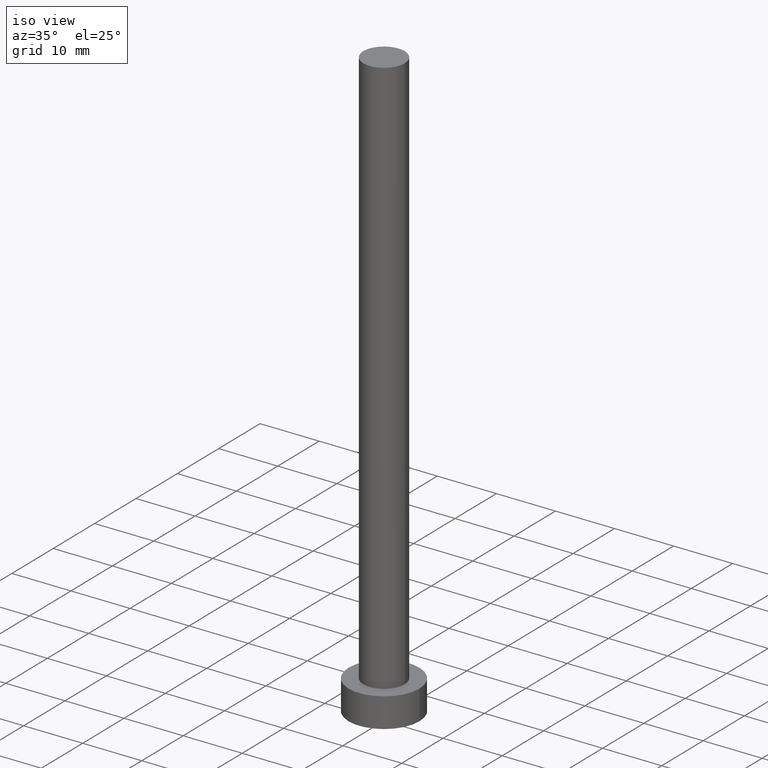
[diagram: clean part render]
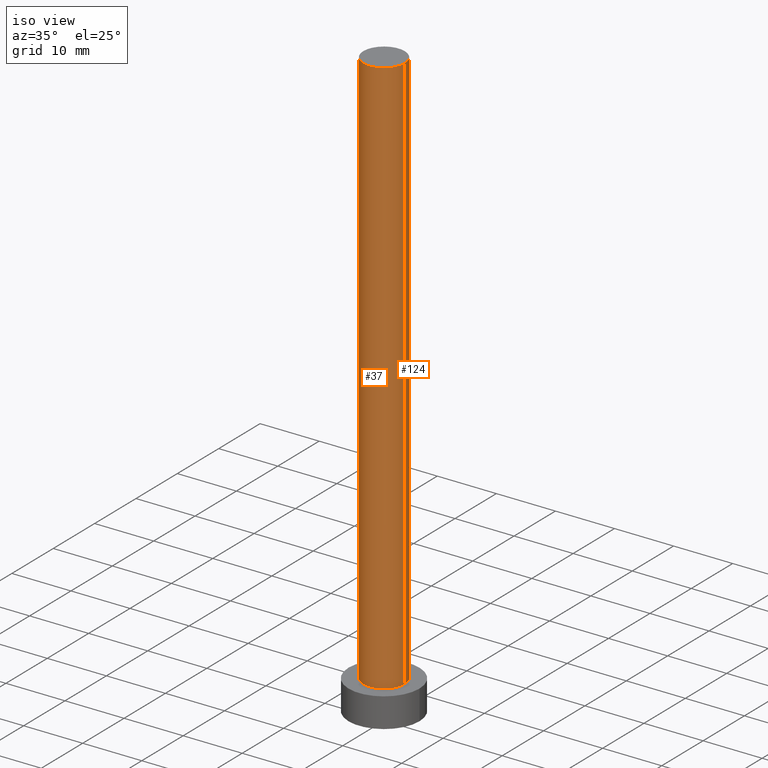
[diagram: same view with one multi-face feature highlighted, each face labeled with its STEP entity id]
A machine part, iso view. The highlighted faces form ONE feature: a constant-radius fillet chain: 2 tangent blend faces with common blend radius 3.5 mm. The faces share edges in the B-rep.
Their STEP definitions:
[1] entity #37 (Cylinder):
#11 = AXIS2_PLACEMENT_3D ( 'NONE', #196, #219, #64 ) ;
#12 = VERTEX_POINT ( 'NONE', #132 ) ;
#13 = DIRECTION ( 'NONE',  ( -0.000000000000000000, -0.000000000000000000, -1.000000000000000000 ) ) ;
#16 = FACE_OUTER_BOUND ( 'NONE', #223, .T. ) ;
#17 = EDGE_CURVE ( 'NONE', #26, #12, #121, .T. ) ;
#26 = VERTEX_POINT ( 'NONE', #128 ) ;
#29 = ORIENTED_EDGE ( 'NONE', *, *, #209, .T. ) ;
#37 = ADVANCED_FACE ( 'NONE', ( #16 ), #252, .T. ) ;
#41 = AXIS2_PLACEMENT_3D ( 'NONE', #111, #190, #188 ) ;
#57 = DIRECTION ( 'NONE',  ( 0.000000000000000000, 0.000000000000000000, 1.000000000000000000 ) ) ;
#64 = DIRECTION ( 'NONE',  ( 1.000000000000000000, 0.000000000000000000, 0.000000000000000000 ) ) ;
#73 = EDGE_CURVE ( 'NONE', #123, #12, #148, .T. ) ;
#92 = DIRECTION ( 'NONE',  ( 1.000000000000000000, 0.000000000000000000, 0.000000000000000000 ) ) ;
#96 = CARTESIAN_POINT ( 'NONE',  ( -3.500000000000000000, 0.000000000000000000, 100.0000000000000000 ) ) ;
#111 = CARTESIAN_POINT ( 'NONE',  ( 0.000000000000000000, 0.000000000000000000, 100.0000000000000000 ) ) ;
#120 = VERTEX_POINT ( 'NONE', #156 ) ;
#121 = CIRCLE ( 'NONE', #152, 3.500000000000000000 ) ;
#123 = VERTEX_POINT ( 'NONE', #151 ) ;
#128 = CARTESIAN_POINT ( 'NONE',  ( -3.500000000000000000, 0.000000000000000000, 5.000000000000000000 ) ) ;
#130 = VECTOR ( 'NONE', #191, 1000.000000000000000 ) ;
#132 = CARTESIAN_POINT ( 'NONE',  ( 3.500000000000000000, 4.286263797015736595E-16, 5.000000000000000000 ) ) ;
#140 = ORIENTED_EDGE ( 'NONE', *, *, #73, .F. ) ;
#148 = LINE ( 'NONE', #235, #192 ) ;
#151 = CARTESIAN_POINT ( 'NONE',  ( 3.500000000000000000, 4.286263797015736595E-16, 100.0000000000000000 ) ) ;
#152 = AXIS2_PLACEMENT_3D ( 'NONE', #208, #57, #92 ) ;
#153 = LINE ( 'NONE', #96, #130 ) ;
#156 = CARTESIAN_POINT ( 'NONE',  ( -3.500000000000000000, 0.000000000000000000, 100.0000000000000000 ) ) ;
#161 = ORIENTED_EDGE ( 'NONE', *, *, #239, .F. ) ;
#188 = DIRECTION ( 'NONE',  ( -1.000000000000000000, 0.000000000000000000, 0.000000000000000000 ) ) ;
#190 = DIRECTION ( 'NONE',  ( -0.000000000000000000, -0.000000000000000000, -1.000000000000000000 ) ) ;
#191 = DIRECTION ( 'NONE',  ( -0.000000000000000000, -0.000000000000000000, -1.000000000000000000 ) ) ;
#192 = VECTOR ( 'NONE', #13, 1000.000000000000000 ) ;
#196 = CARTESIAN_POINT ( 'NONE',  ( 0.000000000000000000, 0.000000000000000000, 100.0000000000000000 ) ) ;
#208 = CARTESIAN_POINT ( 'NONE',  ( 0.000000000000000000, 0.000000000000000000, 5.000000000000000000 ) ) ;
#209 = EDGE_CURVE ( 'NONE', #120, #26, #153, .T. ) ;
#219 = DIRECTION ( 'NONE',  ( 0.000000000000000000, 0.000000000000000000, 1.000000000000000000 ) ) ;
#222 = CIRCLE ( 'NONE', #11, 3.500000000000000000 ) ;
#223 = EDGE_LOOP ( 'NONE', ( #140, #161, #29, #232 ) ) ;
#232 = ORIENTED_EDGE ( 'NONE', *, *, #17, .T. ) ;
#235 = CARTESIAN_POINT ( 'NONE',  ( 3.500000000000000000, 4.286263797015736595E-16, 100.0000000000000000 ) ) ;
#239 = EDGE_CURVE ( 'NONE', #120, #123, #222, .T. ) ;
#252 = CYLINDRICAL_SURFACE ( 'NONE', #41, 3.500000000000000000 ) ;
[2] entity #124 (Cylinder):
#2 = DIRECTION ( 'NONE',  ( 0.000000000000000000, 0.000000000000000000, 1.000000000000000000 ) ) ;
#10 = EDGE_CURVE ( 'NONE', #123, #120, #86, .T. ) ;
#12 = VERTEX_POINT ( 'NONE', #132 ) ;
#13 = DIRECTION ( 'NONE',  ( -0.000000000000000000, -0.000000000000000000, -1.000000000000000000 ) ) ;
#15 = DIRECTION ( 'NONE',  ( 0.000000000000000000, 0.000000000000000000, 1.000000000000000000 ) ) ;
#18 = CARTESIAN_POINT ( 'NONE',  ( 0.000000000000000000, 0.000000000000000000, 5.000000000000000000 ) ) ;
#26 = VERTEX_POINT ( 'NONE', #128 ) ;
#31 = AXIS2_PLACEMENT_3D ( 'NONE', #18, #2, #61 ) ;
#32 = ORIENTED_EDGE ( 'NONE', *, *, #10, .F. ) ;
#61 = DIRECTION ( 'NONE',  ( 1.000000000000000000, 0.000000000000000000, 0.000000000000000000 ) ) ;
#73 = EDGE_CURVE ( 'NONE', #123, #12, #148, .T. ) ;
#86 = CIRCLE ( 'NONE', #149, 3.500000000000000000 ) ;
#96 = CARTESIAN_POINT ( 'NONE',  ( -3.500000000000000000, 0.000000000000000000, 100.0000000000000000 ) ) ;
#97 = DIRECTION ( 'NONE',  ( -0.000000000000000000, -0.000000000000000000, -1.000000000000000000 ) ) ;
#106 = ORIENTED_EDGE ( 'NONE', *, *, #228, .T. ) ;
#120 = VERTEX_POINT ( 'NONE', #156 ) ;
#123 = VERTEX_POINT ( 'NONE', #151 ) ;
#124 = ADVANCED_FACE ( 'NONE', ( #176 ), #194, .T. ) ;
#128 = CARTESIAN_POINT ( 'NONE',  ( -3.500000000000000000, 0.000000000000000000, 5.000000000000000000 ) ) ;
#130 = VECTOR ( 'NONE', #191, 1000.000000000000000 ) ;
#132 = CARTESIAN_POINT ( 'NONE',  ( 3.500000000000000000, 4.286263797015736595E-16, 5.000000000000000000 ) ) ;
#135 = CARTESIAN_POINT ( 'NONE',  ( 0.000000000000000000, 0.000000000000000000, 100.0000000000000000 ) ) ;
#139 = DIRECTION ( 'NONE',  ( -1.000000000000000000, 0.000000000000000000, 0.000000000000000000 ) ) ;
#148 = LINE ( 'NONE', #235, #192 ) ;
#149 = AXIS2_PLACEMENT_3D ( 'NONE', #167, #15, #255 ) ;
#151 = CARTESIAN_POINT ( 'NONE',  ( 3.500000000000000000, 4.286263797015736595E-16, 100.0000000000000000 ) ) ;
#153 = LINE ( 'NONE', #96, #130 ) ;
#156 = CARTESIAN_POINT ( 'NONE',  ( -3.500000000000000000, 0.000000000000000000, 100.0000000000000000 ) ) ;
#159 = ORIENTED_EDGE ( 'NONE', *, *, #209, .F. ) ;
#167 = CARTESIAN_POINT ( 'NONE',  ( 0.000000000000000000, 0.000000000000000000, 100.0000000000000000 ) ) ;
#175 = AXIS2_PLACEMENT_3D ( 'NONE', #135, #97, #139 ) ;
#176 = FACE_OUTER_BOUND ( 'NONE', #205, .T. ) ;
#191 = DIRECTION ( 'NONE',  ( -0.000000000000000000, -0.000000000000000000, -1.000000000000000000 ) ) ;
#192 = VECTOR ( 'NONE', #13, 1000.000000000000000 ) ;
#194 = CYLINDRICAL_SURFACE ( 'NONE', #175, 3.500000000000000000 ) ;
#205 = EDGE_LOOP ( 'NONE', ( #32, #247, #106, #159 ) ) ;
#209 = EDGE_CURVE ( 'NONE', #120, #26, #153, .T. ) ;
#213 = CIRCLE ( 'NONE', #31, 3.500000000000000000 ) ;
#228 = EDGE_CURVE ( 'NONE', #12, #26, #213, .T. ) ;
#235 = CARTESIAN_POINT ( 'NONE',  ( 3.500000000000000000, 4.286263797015736595E-16, 100.0000000000000000 ) ) ;
#247 = ORIENTED_EDGE ( 'NONE', *, *, #73, .T. ) ;
#255 = DIRECTION ( 'NONE',  ( 1.000000000000000000, 0.000000000000000000, 0.000000000000000000 ) ) ;